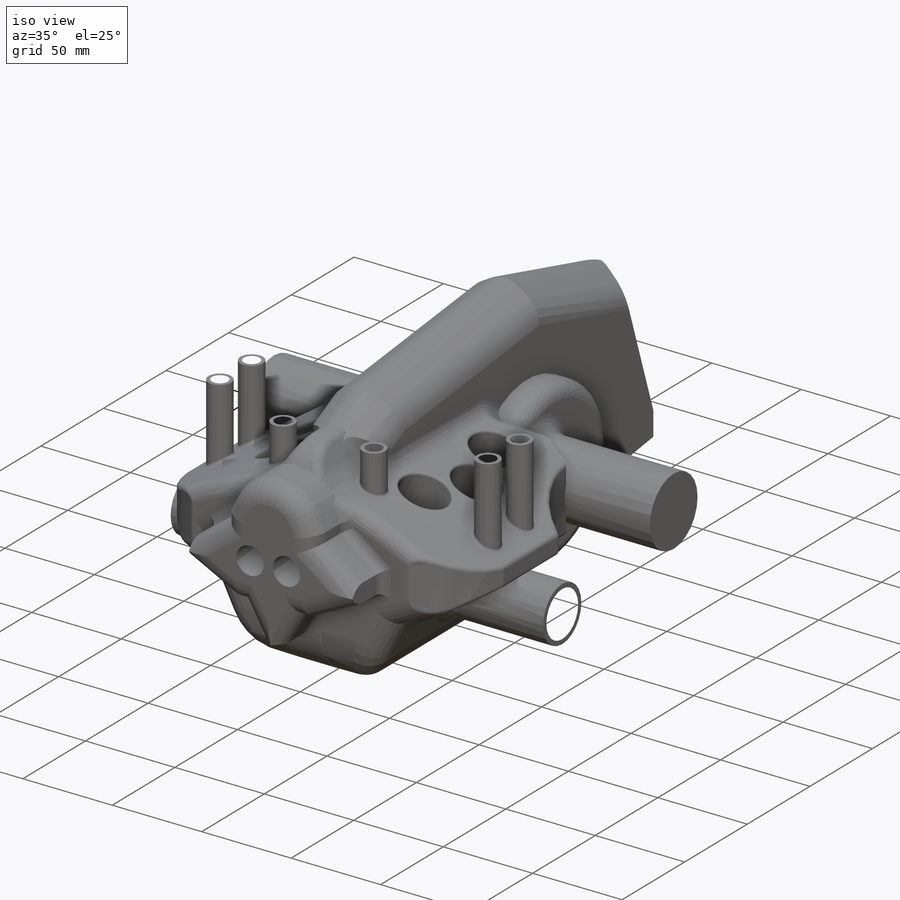
[diagram: iso view]
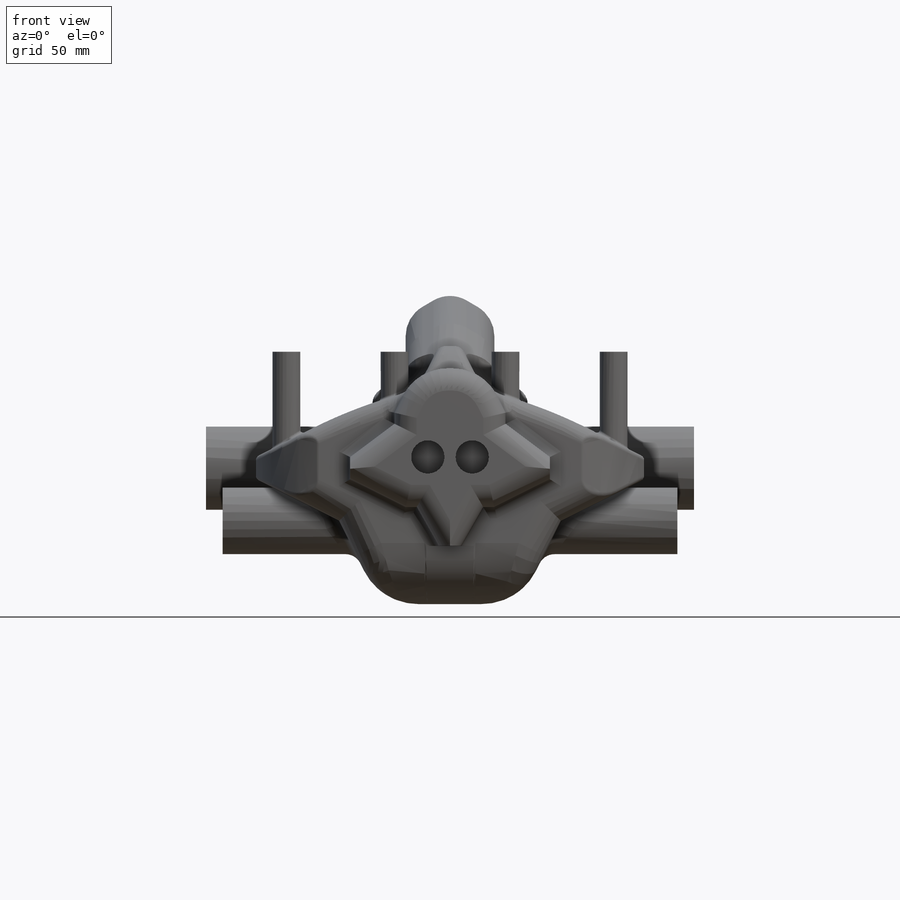
[diagram: front view]
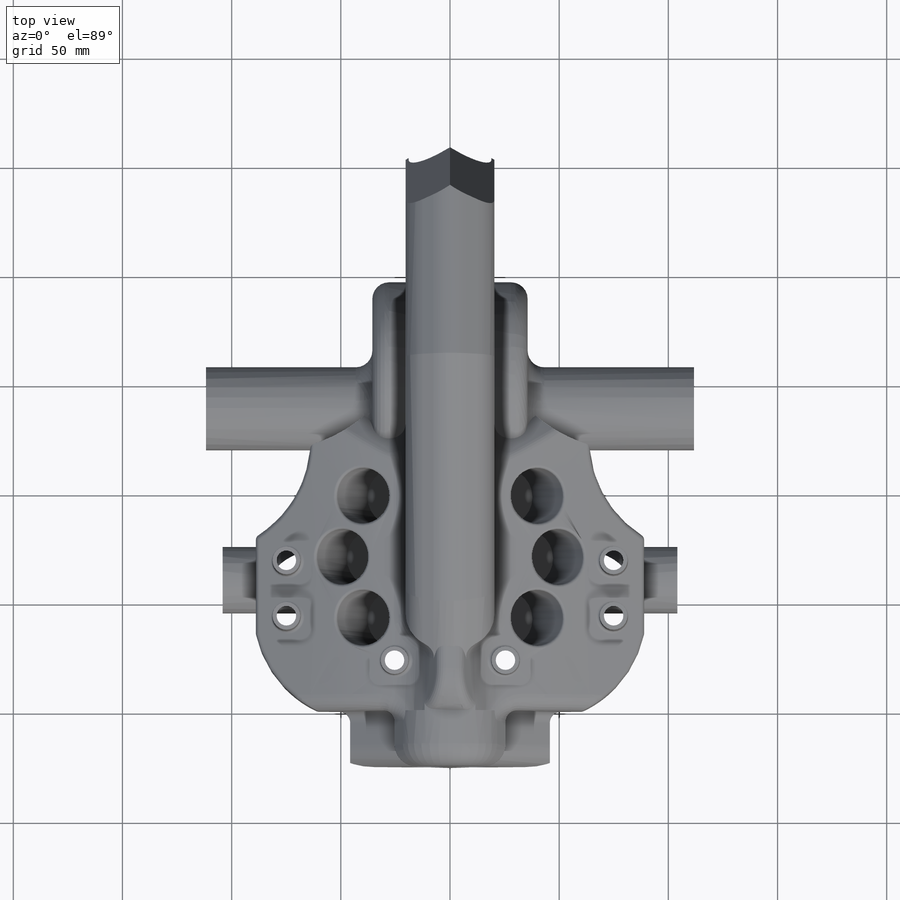
[diagram: top view]
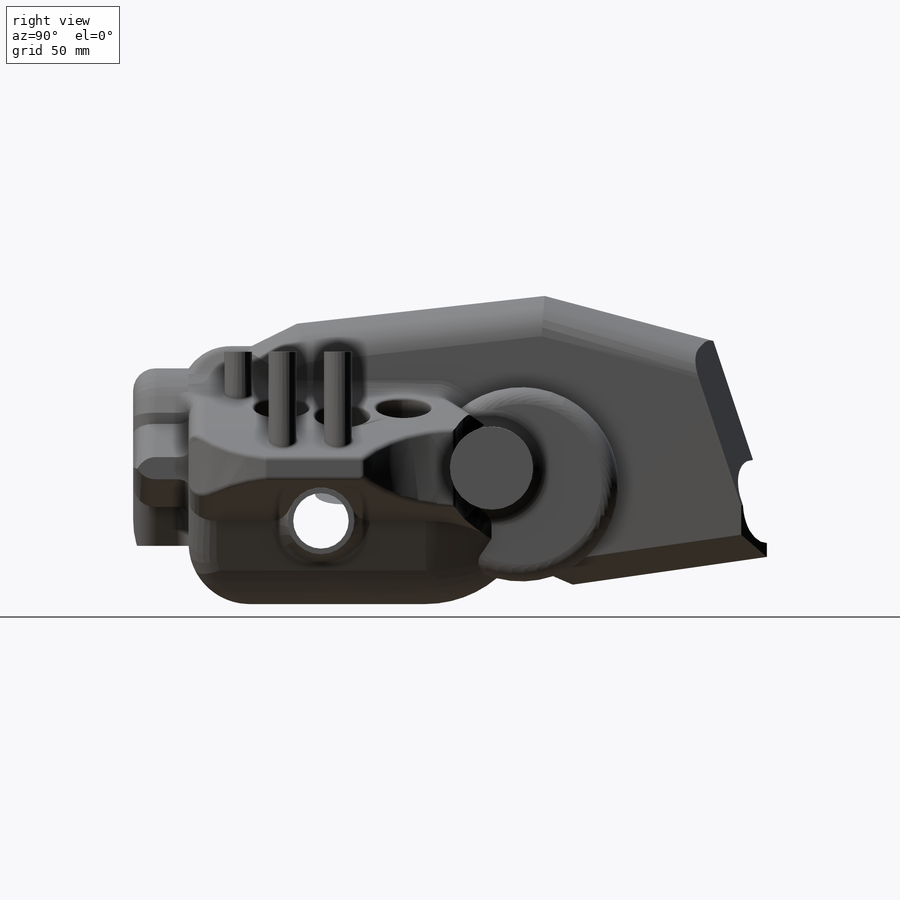
[diagram: right view]
SOLIDWORKS PART (.sldprt)
format: sldprt  version: not decoded by parser v0  size: 1,859,072 bytes
history: native  units: mm
features: fillet x18, sketch x12, extrude x7, cut_extrude x5, mirror x4, plane x3, chamfer x2, material x1 (+13 scaffold rows collapsed)
feature tree (65):
  scaffold x13  (default folders/planes/origin — collapsed)
  material  "Material <not specified>"
  sketch  "Sketch1"  dims[.8D1=20.32mm D2=40.64mm D3=30.48mm D4=10.16mm D5=20.32mm D6=5.08mm D7=15.24mm D8=20.32mm D9=10.16mm D10=12.7mm D11=25.4mm D12=5.08mm D13=5.08mm]
  extrude  "Boss-Extrude1"  Depth=25.4mm
  sketch  "Sketch2"  dims[c1.D1=10.16mm c1.D2=10.16mm c1.D3=20.32mm c1.D4=12.7mm c1.D5=~15.405525mm c2.D4=15.24mm c2.D5=12.7mm c2.D6=10.16mm c2.D7=63.5mm c2.D8=15.24mm c2.D9=38.1mm c2.D10=38.1mm c2.D11=63.5mm]
  extrude  "Boss-Extrude2"  Depth=152.4mm
  fillet  "Fillet1"  Radius=22.86mm
  fillet  "Fillet2"  Radius=5.08mm
  fillet  "Fillet3"  Radius=10.16mm
  fillet  "Fillet4"  Radius=7.62mm
  fillet  "Fillet5"  Radius=22.86mm
  fillet  "Fillet6"  Radius=12.7mm
  sketch  "Sketch3"  dims[D2=63.5mm D3=50.8mm D4=50.8mm D1=30.48mm D5=35.56mm]
  cut_extrude  "Cut-Extrude1"  [1 undecoded]
  fillet  "Fillet7"  Radius=2.54mm
  fillet  "Fillet8"  Radius=27.94mm
  chamfer  "Chamfer1"  Distance=22.86mm Angle=45deg
  fillet  "Fillet9"  Radius=50.8mm
  chamfer  "Chamfer2"  Distance=50.8mm Angle=45deg
  fillet  "Fillet10"  Radius=177.8mm
  fillet  "Fillet11"  Radius=5.08mm
  sketch  "Sketch4"  dims[D1=25.4mm D2=12.7mm D3=12.7mm D4=114.3mm D5=76.2mm D6=20.32mm D7=76.2mm D8=25.4mm D9=25.4mm D10=88.9mm D11=12.7mm]
  extrude  "Boss-Extrude3"  Depth=40.64mm
  fillet  "Fillet12"  Radius=15.24mm
  fillet  "Fillet13"  Radius=7.62mm
  sketch  "Sketch5"  dims[D1=88.9mm]
  extrude  "Boss-Extrude4"  Depth=55.88mm
  fillet  "Fillet14"  Radius=7.62mm
  sketch  "Sketch6"  dims[D1=38.1mm]
  extrude  "Boss-Extrude5"  Depth=76.2mm
  mirror  "Mirror1"
  fillet  "Fillet15"  Radius=7.62mm
  sketch  "Sketch7"  dims[D1=30.48mm]
  extrude  "Boss-Extrude6"  Depth=68.58mm
  mirror  "Mirror2"
  fillet  "Fillet16"  Radius=7.62mm
  plane  "Plane1"
  sketch  "Sketch8"  dims[c1.D3=25.4mm c1.D1=~40.136647mm c2.D1=~0.008199deg c3.D1=12.7mm c3.D2=15.24mm c4.D1=15.24mm c4.D4=55.88mm c4.D5=10.16mm]
  cut_extrude  "Cut-Extrude2"  Depth=38.1mm
  mirror  "Mirror3"
  fillet  "Fillet17"  Radius=1.27mm
  plane  "Plane2"  Offset=2.54mm
  sketch  "Sketch9"  dims[c1.D3=12.7mm c1.D1=25.4mm c1.D2=11.43mm c1.D4=35.56mm c1.D5=~20.530134mm c1.D6=~49.973681mm c2.D2=20.32mm c2.D4=49.53mm]
  extrude  "Boss-Extrude7"  Depth=45.72mm
  fillet  "Fillet18"  Radius=1.27mm
  sketch  "Sketch10"  dims[D1=8.89mm]
  cut_extrude  "Cut-Extrude3"  Depth=50.8mm
  sketch  "Sketch11"  dims[D1=25.4mm]
  cut_extrude  "Cut-Extrude4"  Depth=12.7mm
  mirror  "Mirror4"
  plane  "Plane3"
  sketch  "Sketch12"  dims[D1=38.1mm]
  cut_extrude  "Cut-Extrude5"  Depth=20.32mm
decode coverage: 43 of 48 modeling features carry decoded parameters
note: ~ marks probable driven/reference dimensions
note: 1 parameter value undecoded
note: suppression state not decoded; provenance and decode notes live in map.json
